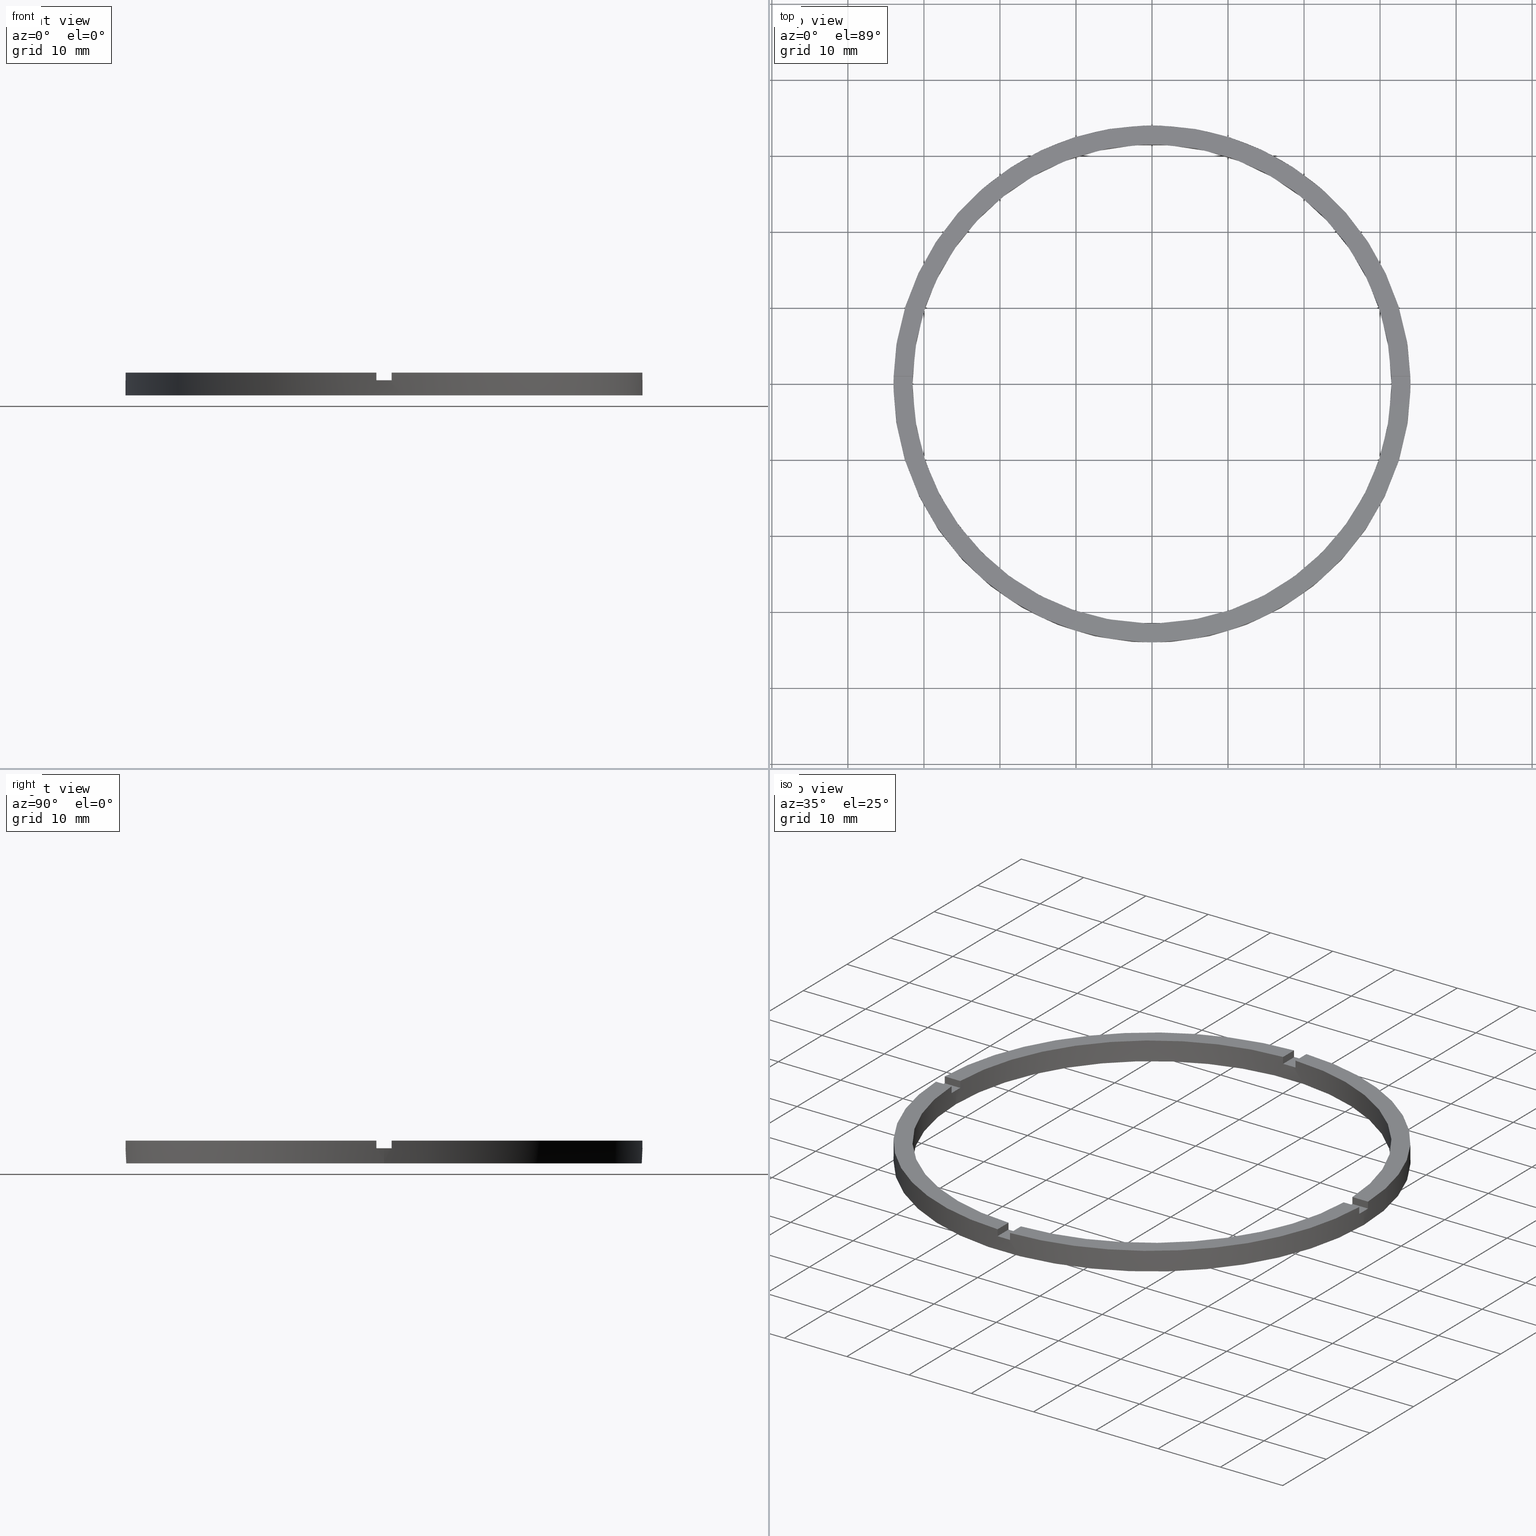
[diagram: canonical four-view strip — front | top / right | iso, engineering-drawing reading convention]
A machine part, canonical four-view strip (front | top / right | iso — engineering-drawing reading convention). The complete STEP part file that produces these views, byte-faithful:
ISO-10303-21;
HEADER;
FILE_DESCRIPTION (( 'STEP AP203' ),
    '1' );
FILE_NAME ('514140.step',
    '2024-12-26T02:41:22',
    ( 'MSI' ),
    ( '' ),
    'SwSTEP 2.0',
    'SolidWorks 2020',
    '' );
FILE_SCHEMA (( 'CONFIG_CONTROL_DESIGN' ));
ENDSEC;

DATA;
#1 = EDGE_CURVE ( 'NONE', #356, #664, #633, .T. ) ;
#2 = AXIS2_PLACEMENT_3D ( 'NONE', #717, #768, #128 ) ;
#3 = CARTESIAN_POINT ( 'NONE',  ( 33.98529093593285921, 0.9999999999998419042, 3.000000000000000000 ) ) ;
#4 = EDGE_LOOP ( 'NONE', ( #408, #92, #340, #154 ) ) ;
#5 = DIRECTION ( 'NONE',  ( 0.000000000000000000, 0.000000000000000000, 1.000000000000000000 ) ) ;
#6 = EDGE_LOOP ( 'NONE', ( #116, #222, #625, #423 ) ) ;
#7 = APPROVAL_ROLE ( '' ) ;
#8 = AXIS2_PLACEMENT_3D ( 'NONE', #546, #290, #142 ) ;
#9 = DIRECTION ( 'NONE',  ( 1.951563910473907735E-16, -1.000000000000000000, 0.000000000000000000 ) ) ;
#10 = ORIENTED_EDGE ( 'NONE', *, *, #11, .T. ) ;
#11 = EDGE_CURVE ( 'NONE', #246, #400, #643, .T. ) ;
#12 = AXIS2_PLACEMENT_3D ( 'NONE', #532, #288, #674 ) ;
#13 = APPROVAL_DATE_TIME ( #273, #708 ) ;
#14 = DIRECTION ( 'NONE',  ( -0.000000000000000000, -0.000000000000000000, -1.000000000000000000 ) ) ;
#15 = EDGE_LOOP ( 'NONE', ( #636, #626, #94, #138 ) ) ;
#16 = VERTEX_POINT ( 'NONE', #682 ) ;
#17 = PERSON_AND_ORGANIZATION ( #520, #336 ) ;
#18 = ORIENTED_EDGE ( 'NONE', *, *, #647, .F. ) ;
#19 = ORIENTED_EDGE ( 'NONE', *, *, #326, .T. ) ;
#20 = EDGE_CURVE ( 'NONE', #596, #73, #347, .T. ) ;
#21 = DIRECTION ( 'NONE',  ( 1.000000000000000000, 0.000000000000000000, 0.000000000000000000 ) ) ;
#22 = ORIENTED_EDGE ( 'NONE', *, *, #574, .F. ) ;
#23 = CC_DESIGN_PERSON_AND_ORGANIZATION_ASSIGNMENT ( #614, #263, ( #109 ) ) ;
#24 =( NAMED_UNIT ( * ) PLANE_ANGLE_UNIT ( ) SI_UNIT ( $, .RADIAN. ) );
#25 = CARTESIAN_POINT ( 'NONE',  ( -24.00000000000018829, 0.9999999999999754641, 2.000000000000000000 ) ) ;
#26 = ORIENTED_EDGE ( 'NONE', *, *, #261, .T. ) ;
#27 = EDGE_CURVE ( 'NONE', #646, #394, #618, .T. ) ;
#28 = CALENDAR_DATE ( 2024, 26, 12 ) ;
#29 = CARTESIAN_POINT ( 'NONE',  ( 0.000000000000000000, 0.000000000000000000, 3.000000000000000000 ) ) ;
#30 = CARTESIAN_POINT ( 'NONE',  ( 0.000000000000000000, 0.000000000000000000, 3.000000000000000000 ) ) ;
#31 = CARTESIAN_POINT ( 'NONE',  ( 0.000000000000000000, 0.000000000000000000, 3.000000000000000000 ) ) ;
#32 = DIRECTION ( 'NONE',  ( 1.000000000000000000, 0.000000000000000000, 0.000000000000000000 ) ) ;
#33 = COORDINATED_UNIVERSAL_TIME_OFFSET ( 8, 0, .AHEAD. ) ;
#34 = AXIS2_PLACEMENT_3D ( 'NONE', #526, #517, #278 ) ;
#35 = APPROVAL_PERSON_ORGANIZATION ( #611, #648, #754 ) ;
#36 = DIRECTION ( 'NONE',  ( 1.000000000000000000, 0.000000000000000000, 0.000000000000000000 ) ) ;
#37 = CALENDAR_DATE ( 2024, 26, 12 ) ;
#38 = EDGE_CURVE ( 'NONE', #376, #344, #93, .T. ) ;
#39 = AXIS2_PLACEMENT_3D ( 'NONE', #723, #241, #190 ) ;
#40 = VECTOR ( 'NONE', #556, 1000.000000000000000 ) ;
#41 = VECTOR ( 'NONE', #393, 1000.000000000000000 ) ;
#42 = VECTOR ( 'NONE', #691, 1000.000000000000000 ) ;
#43 = PLANE ( 'NONE',  #445 ) ;
#44 = CARTESIAN_POINT ( 'NONE',  ( -31.48412298286233124, -1.000000000000025757, 3.000000000000000000 ) ) ;
#45 = VECTOR ( 'NONE', #730, 1000.000000000000000 ) ;
#46 = CIRCLE ( 'NONE', #477, 34.00000000000000000 ) ;
#47 = LINE ( 'NONE', #589, #597 ) ;
#48 = PLANE ( 'NONE',  #162 ) ;
#49 = CIRCLE ( 'NONE', #39, 31.50000000000000000 ) ;
#50 = CARTESIAN_POINT ( 'NONE',  ( -1.000000000000160760, -33.98529093593285211, 2.000000000000000000 ) ) ;
#51 = CARTESIAN_POINT ( 'NONE',  ( 0.9999999999998380185, -24.00000000000018119, 3.000000000000000000 ) ) ;
#52 = LINE ( 'NONE', #769, #71 ) ;
#53 = CIRCLE ( 'NONE', #699, 31.50000000000000000 ) ;
#54 = FACE_OUTER_BOUND ( 'NONE', #115, .T. ) ;
#55 = CIRCLE ( 'NONE', #212, 31.50000000000000000 ) ;
#56 = CARTESIAN_POINT ( 'NONE',  ( 0.000000000000000000, 0.000000000000000000, 3.000000000000000000 ) ) ;
#57 = PLANE ( 'NONE',  #337 ) ;
#58 = ADVANCED_FACE ( 'NONE', ( #615 ), #627, .T. ) ;
#59 = FACE_OUTER_BOUND ( 'NONE', #15, .T. ) ;
#60 = VECTOR ( 'NONE', #489, 1000.000000000000000 ) ;
#61 = CARTESIAN_POINT ( 'NONE',  ( -24.00000000000018829, -1.000000000000024425, 3.000000000000000000 ) ) ;
#62 = VECTOR ( 'NONE', #506, 1000.000000000000000 ) ;
#63 = DIRECTION ( 'NONE',  ( 0.000000000000000000, -0.000000000000000000, 1.000000000000000000 ) ) ;
#64 = VECTOR ( 'NONE', #737, 1000.000000000000000 ) ;
#65 = ORIENTED_EDGE ( 'NONE', *, *, #219, .F. ) ;
#66 = VECTOR ( 'NONE', #342, 1000.000000000000000 ) ;
#67 = ORIENTED_EDGE ( 'NONE', *, *, #456, .T. ) ;
#68 = LINE ( 'NONE', #390, #581 ) ;
#69 = FACE_OUTER_BOUND ( 'NONE', #378, .T. ) ;
#70 = EDGE_CURVE ( 'NONE', #117, #327, #86, .T. ) ;
#71 = VECTOR ( 'NONE', #175, 1000.000000000000000 ) ;
#72 = LINE ( 'NONE', #765, #330 ) ;
#73 = VERTEX_POINT ( 'NONE', #771 ) ;
#74 = AXIS2_PLACEMENT_3D ( 'NONE', #425, #473, #533 ) ;
#75 = ORIENTED_EDGE ( 'NONE', *, *, #70, .F. ) ;
#76 = APPROVAL_DATE_TIME ( #624, #258 ) ;
#77 = DIRECTION ( 'NONE',  ( -1.000000000000000000, -6.505213034913025371E-17, -0.000000000000000000 ) ) ;
#78 = ORIENTED_EDGE ( 'NONE', *, *, #126, .F. ) ;
#79 = CALENDAR_DATE ( 2024, 26, 12 ) ;
#80 = ORIENTED_EDGE ( 'NONE', *, *, #38, .T. ) ;
#81 = DATE_AND_TIME ( #79, #608 ) ;
#82 = EDGE_LOOP ( 'NONE', ( #513, #700, #277, #230 ) ) ;
#83 = APPROVAL_PERSON_ORGANIZATION ( #606, #258, #153 ) ;
#84 = AXIS2_PLACEMENT_3D ( 'NONE', #399, #401, #560 ) ;
#85 = CARTESIAN_POINT ( 'NONE',  ( -31.48412298286233124, -1.000000000000025757, 2.000000000000000000 ) ) ;
#86 = LINE ( 'NONE', #157, #635 ) ;
#87 = ORIENTED_EDGE ( 'NONE', *, *, #634, .T. ) ;
#88 = AXIS2_PLACEMENT_3D ( 'NONE', #304, #494, #578 ) ;
#89 = ORIENTED_EDGE ( 'NONE', *, *, #160, .F. ) ;
#90 = ORIENTED_EDGE ( 'NONE', *, *, #219, .T. ) ;
#91 = DIRECTION ( 'NONE',  ( -1.000000000000000000, 0.000000000000000000, 0.000000000000000000 ) ) ;
#92 = ORIENTED_EDGE ( 'NONE', *, *, #729, .T. ) ;
#93 = LINE ( 'NONE', #113, #95 ) ;
#94 = ORIENTED_EDGE ( 'NONE', *, *, #501, .T. ) ;
#95 = VECTOR ( 'NONE', #206, 1000.000000000000000 ) ;
#96 = VERTEX_POINT ( 'NONE', #724 ) ;
#97 = ORIENTED_EDGE ( 'NONE', *, *, #734, .T. ) ;
#98 = EDGE_LOOP ( 'NONE', ( #778, #504, #329, #770 ) ) ;
#99 = APPLICATION_CONTEXT ( 'configuration controlled 3d designs of mechanical parts and assemblies' ) ;
#100 = VERTEX_POINT ( 'NONE', #672 ) ;
#101 = VERTEX_POINT ( 'NONE', #213 ) ;
#102 = DIRECTION ( 'NONE',  ( 0.000000000000000000, 0.000000000000000000, 1.000000000000000000 ) ) ;
#103 = EDGE_CURVE ( 'NONE', #642, #16, #365, .T. ) ;
#104 = ORIENTED_EDGE ( 'NONE', *, *, #422, .T. ) ;
#105 = ORIENTED_EDGE ( 'NONE', *, *, #658, .F. ) ;
#106 = ORIENTED_EDGE ( 'NONE', *, *, #70, .T. ) ;
#107 = EDGE_LOOP ( 'NONE', ( #641, #370, #514, #690, #223, #67 ) ) ;
#108 = ORIENTED_EDGE ( 'NONE', *, *, #585, .T. ) ;
#109 = PRODUCT_DEFINITION ( 'δ֪', '', #450, #460 ) ;
#110 = DIRECTION ( 'NONE',  ( 0.000000000000000000, 0.000000000000000000, 1.000000000000000000 ) ) ;
#111 = EDGE_LOOP ( 'NONE', ( #414, #410, #87, #522, #19, #530, #372, #493, #104, #391, #362, #97 ) ) ;
#112 = EDGE_LOOP ( 'NONE', ( #543, #692, #745, #753 ) ) ;
#113 = CARTESIAN_POINT ( 'NONE',  ( 31.50000000000000000, 3.857637417314162689E-15, 3.000000000000000000 ) ) ;
#114 = EDGE_LOOP ( 'NONE', ( #249, #251, #623, #167 ) ) ;
#115 = EDGE_LOOP ( 'NONE', ( #677, #358 ) ) ;
#116 = ORIENTED_EDGE ( 'NONE', *, *, #456, .F. ) ;
#117 = VERTEX_POINT ( 'NONE', #44 ) ;
#118 = ADVANCED_FACE ( 'NONE', ( #637 ), #209, .T. ) ;
#119 = EDGE_LOOP ( 'NONE', ( #416, #427, #490, #696 ) ) ;
#120 = VERTEX_POINT ( 'NONE', #259 ) ;
#121 = ORIENTED_EDGE ( 'NONE', *, *, #38, .F. ) ;
#122 = CARTESIAN_POINT ( 'NONE',  ( 0.000000000000000000, 0.000000000000000000, 2.000000000000000000 ) ) ;
#123 = CARTESIAN_POINT ( 'NONE',  ( 0.000000000000000000, 0.000000000000000000, 2.000000000000000000 ) ) ;
#124 = CARTESIAN_POINT ( 'NONE',  ( 0.9999999999999751310, 24.00000000000000000, 2.000000000000000000 ) ) ;
#125 = DIRECTION ( 'NONE',  ( 1.000000000000000000, 0.000000000000000000, -0.000000000000000000 ) ) ;
#126 = EDGE_CURVE ( 'NONE', #629, #338, #743, .T. ) ;
#127 = AXIS2_PLACEMENT_3D ( 'NONE', #122, #210, #588 ) ;
#128 = DIRECTION ( 'NONE',  ( 1.000000000000000000, 0.000000000000000000, -0.000000000000000000 ) ) ;
#129 = PLANE ( 'NONE',  #407 ) ;
#130 = EDGE_CURVE ( 'NONE', #344, #271, #486, .T. ) ;
#131 = ORIENTED_EDGE ( 'NONE', *, *, #678, .F. ) ;
#132 = CARTESIAN_POINT ( 'NONE',  ( 0.9999999999998380185, -24.00000000000018119, 2.000000000000000000 ) ) ;
#133 = DIRECTION ( 'NONE',  ( -0.000000000000000000, 0.000000000000000000, 1.000000000000000000 ) ) ;
#134 = DIRECTION ( 'NONE',  ( 0.000000000000000000, 0.000000000000000000, 1.000000000000000000 ) ) ;
#135 = ADVANCED_FACE ( 'NONE', ( #495 ), #169, .T. ) ;
#136 = ORIENTED_EDGE ( 'NONE', *, *, #467, .F. ) ;
#137 = AXIS2_PLACEMENT_3D ( 'NONE', #718, #436, #32 ) ;
#138 = ORIENTED_EDGE ( 'NONE', *, *, #689, .F. ) ;
#139 = DIRECTION ( 'NONE',  ( -1.000000000000000000, -1.951563910473907735E-16, 0.000000000000000000 ) ) ;
#140 = DIRECTION ( 'NONE',  ( 1.000000000000000000, 0.000000000000000000, 0.000000000000000000 ) ) ;
#141 = EDGE_CURVE ( 'NONE', #596, #120, #738, .T. ) ;
#142 = DIRECTION ( 'NONE',  ( 1.000000000000000000, 6.505213034913025371E-17, 0.000000000000000000 ) ) ;
#143 = CC_DESIGN_PERSON_AND_ORGANIZATION_ASSIGNMENT ( #558, #404, ( #450 ) ) ;
#144 = ORIENTED_EDGE ( 'NONE', *, *, #767, .T. ) ;
#145 = ADVANCED_FACE ( 'NONE', ( #505 ), #468, .T. ) ;
#146 = DIRECTION ( 'NONE',  ( 1.000000000000000000, 1.951563910473907735E-16, -0.000000000000000000 ) ) ;
#147 = DIRECTION ( 'NONE',  ( -1.000000000000000000, -1.301042606982605074E-16, 0.000000000000000000 ) ) ;
#148 = DIRECTION ( 'NONE',  ( 1.000000000000000000, 1.951563910473907735E-16, 0.000000000000000000 ) ) ;
#149 = EDGE_CURVE ( 'NONE', #371, #415, #748, .T. ) ;
#150 = ORIENTED_EDGE ( 'NONE', *, *, #491, .T. ) ;
#151 = DIRECTION ( 'NONE',  ( 0.000000000000000000, 0.000000000000000000, 1.000000000000000000 ) ) ;
#152 = DIRECTION ( 'NONE',  ( 1.000000000000000000, 0.000000000000000000, -0.000000000000000000 ) ) ;
#153 = APPROVAL_ROLE ( '' ) ;
#154 = ORIENTED_EDGE ( 'NONE', *, *, #668, .F. ) ;
#155 = VERTEX_POINT ( 'NONE', #412 ) ;
#156 = ORIENTED_EDGE ( 'NONE', *, *, #501, .F. ) ;
#157 = CARTESIAN_POINT ( 'NONE',  ( -31.48412298286233124, -1.000000000000025757, 3.000000000000000000 ) ) ;
#158 = PLANE ( 'NONE',  #484 ) ;
#159 = AXIS2_PLACEMENT_3D ( 'NONE', #323, #379, #270 ) ;
#160 = EDGE_CURVE ( 'NONE', #415, #382, #478, .T. ) ;
#161 = ORIENTED_EDGE ( 'NONE', *, *, #256, .T. ) ;
#162 = AXIS2_PLACEMENT_3D ( 'NONE', #132, #374, #435 ) ;
#163 = PERSON_AND_ORGANIZATION_ROLE ( 'classification_officer' ) ;
#164 = CARTESIAN_POINT ( 'NONE',  ( 0.000000000000000000, 0.000000000000000000, 2.000000000000000000 ) ) ;
#165 = VERTEX_POINT ( 'NONE', #174 ) ;
#166 = DIRECTION ( 'NONE',  ( -0.000000000000000000, -0.000000000000000000, -1.000000000000000000 ) ) ;
#167 = ORIENTED_EDGE ( 'NONE', *, *, #261, .F. ) ;
#168 = DIRECTION ( 'NONE',  ( 1.000000000000000000, 1.951563910473907735E-16, -0.000000000000000000 ) ) ;
#169 = PLANE ( 'NONE',  #280 ) ;
#170 = ORIENTED_EDGE ( 'NONE', *, *, #1, .T. ) ;
#171 = AXIS2_PLACEMENT_3D ( 'NONE', #123, #419, #36 ) ;
#172 = DIRECTION ( 'NONE',  ( -1.000000000000000000, 0.000000000000000000, 0.000000000000000000 ) ) ;
#173 = PLANE ( 'NONE',  #185 ) ;
#174 = CARTESIAN_POINT ( 'NONE',  ( 31.48412298286233479, 0.9999999999998416822, 2.000000000000000000 ) ) ;
#175 = DIRECTION ( 'NONE',  ( -0.000000000000000000, -1.000000000000000000, -0.000000000000000000 ) ) ;
#176 = EDGE_CURVE ( 'NONE', #356, #649, #497, .T. ) ;
#177 = ADVANCED_FACE ( 'NONE', ( #479 ), #173, .T. ) ;
#178 = CARTESIAN_POINT ( 'NONE',  ( 0.000000000000000000, 0.000000000000000000, 0.000000000000000000 ) ) ;
#179 = CARTESIAN_POINT ( 'NONE',  ( 0.000000000000000000, 0.000000000000000000, 2.000000000000000000 ) ) ;
#180 = AXIS2_PLACEMENT_3D ( 'NONE', #348, #466, #413 ) ;
#181 = DIRECTION ( 'NONE',  ( -1.951563910473907735E-16, 1.000000000000000000, 0.000000000000000000 ) ) ;
#182 = CARTESIAN_POINT ( 'NONE',  ( 0.000000000000000000, 0.000000000000000000, 0.000000000000000000 ) ) ;
#183 = CIRCLE ( 'NONE', #516, 31.50000000000000000 ) ;
#184 = VECTOR ( 'NONE', #757, 1000.000000000000000 ) ;
#185 = AXIS2_PLACEMENT_3D ( 'NONE', #773, #680, #357 ) ;
#186 = CIRCLE ( 'NONE', #88, 34.00000000000000000 ) ;
#187 = PLANE ( 'NONE',  #396 ) ;
#188 = DIRECTION ( 'NONE',  ( 0.000000000000000000, 0.000000000000000000, 1.000000000000000000 ) ) ;
#189 = CARTESIAN_POINT ( 'NONE',  ( 33.98529093593285211, -1.000000000000158096, 3.000000000000000000 ) ) ;
#190 = DIRECTION ( 'NONE',  ( 1.000000000000000000, 0.000000000000000000, 0.000000000000000000 ) ) ;
#191 = LINE ( 'NONE', #707, #184 ) ;
#192 = EDGE_CURVE ( 'NONE', #101, #382, #756, .T. ) ;
#193 = VECTOR ( 'NONE', #310, 1000.000000000000000 ) ;
#194 = CIRCLE ( 'NONE', #448, 34.00000000000000000 ) ;
#195 = APPLICATION_PROTOCOL_DEFINITION ( 'international standard', 'config_control_design', 1994, #750 ) ;
#196 = CARTESIAN_POINT ( 'NONE',  ( 33.98529093593285211, -1.000000000000158096, 3.000000000000000000 ) ) ;
#197 = MANIFOLD_SOLID_BREP ( '�г�-����1', #613 ) ;
#198 = CARTESIAN_POINT ( 'NONE',  ( 0.9999999999999751310, 31.48412298286233124, 3.000000000000000000 ) ) ;
#199 = AXIS2_PLACEMENT_3D ( 'NONE', #366, #409, #125 ) ;
#200 = CARTESIAN_POINT ( 'NONE',  ( 0.9999999999998380185, -24.00000000000018119, 2.000000000000000000 ) ) ;
#201 = DIRECTION ( 'NONE',  ( 1.000000000000000000, 0.000000000000000000, 0.000000000000000000 ) ) ;
#202 = EDGE_CURVE ( 'NONE', #433, #276, #233, .T. ) ;
#203 = PRODUCT ( '514140', '514140', '', ( #461 ) ) ;
#204 = DIRECTION ( 'NONE',  ( 1.000000000000000000, 0.000000000000000000, 0.000000000000000000 ) ) ;
#205 = CARTESIAN_POINT ( 'NONE',  ( 0.000000000000000000, 0.000000000000000000, 2.000000000000000000 ) ) ;
#206 = DIRECTION ( 'NONE',  ( -0.000000000000000000, -0.000000000000000000, -1.000000000000000000 ) ) ;
#207 = LINE ( 'NONE', #782, #216 ) ;
#208 = EDGE_CURVE ( 'NONE', #155, #354, #487, .T. ) ;
#209 = CYLINDRICAL_SURFACE ( 'NONE', #384, 34.00000000000000000 ) ;
#210 = DIRECTION ( 'NONE',  ( 0.000000000000000000, -0.000000000000000000, 1.000000000000000000 ) ) ;
#211 = CARTESIAN_POINT ( 'NONE',  ( 0.9999999999998393507, -33.98529093593285921, 3.000000000000000000 ) ) ;
#212 = AXIS2_PLACEMENT_3D ( 'NONE', #240, #63, #140 ) ;
#213 = CARTESIAN_POINT ( 'NONE',  ( -1.000000000000024869, 33.98529093593285211, 3.000000000000000000 ) ) ;
#214 = ADVANCED_FACE ( 'NONE', ( #502 ), #346, .T. ) ;
#215 = CARTESIAN_POINT ( 'NONE',  ( -33.98529093593285921, 0.9999999999999735767, 2.000000000000000000 ) ) ;
#216 = VECTOR ( 'NONE', #239, 1000.000000000000000 ) ;
#217 = PLANE ( 'NONE',  #171 ) ;
#218 = LINE ( 'NONE', #387, #220 ) ;
#219 = EDGE_CURVE ( 'NONE', #338, #96, #758, .T. ) ;
#220 = VECTOR ( 'NONE', #776, 1000.000000000000000 ) ;
#221 = CARTESIAN_POINT ( 'NONE',  ( 31.48412298286233479, 0.9999999999998416822, 3.000000000000000000 ) ) ;
#222 = ORIENTED_EDGE ( 'NONE', *, *, #553, .T. ) ;
#223 = ORIENTED_EDGE ( 'NONE', *, *, #103, .F. ) ;
#224 = VECTOR ( 'NONE', #666, 1000.000000000000000 ) ;
#225 = CARTESIAN_POINT ( 'NONE',  ( 0.000000000000000000, 0.000000000000000000, 3.000000000000000000 ) ) ;
#226 = DIRECTION ( 'NONE',  ( 0.000000000000000000, 0.000000000000000000, 1.000000000000000000 ) ) ;
#227 = DIRECTION ( 'NONE',  ( 0.000000000000000000, -0.000000000000000000, 1.000000000000000000 ) ) ;
#228 = VECTOR ( 'NONE', #594, 1000.000000000000000 ) ;
#229 = EDGE_CURVE ( 'NONE', #388, #155, #740, .T. ) ;
#230 = ORIENTED_EDGE ( 'NONE', *, *, #571, .F. ) ;
#231 = AXIS2_PLACEMENT_3D ( 'NONE', #449, #703, #567 ) ;
#232 = CARTESIAN_POINT ( 'NONE',  ( 0.000000000000000000, 0.000000000000000000, 2.000000000000000000 ) ) ;
#233 = LINE ( 'NONE', #267, #224 ) ;
#234 = CARTESIAN_POINT ( 'NONE',  ( 0.000000000000000000, 0.000000000000000000, 2.000000000000000000 ) ) ;
#235 = DIRECTION ( 'NONE',  ( -0.000000000000000000, -0.000000000000000000, -1.000000000000000000 ) ) ;
#236 = ADVANCED_FACE ( 'NONE', ( #744 ), #48, .F. ) ;
#237 = ORIENTED_EDGE ( 'NONE', *, *, #686, .F. ) ;
#238 = FACE_OUTER_BOUND ( 'NONE', #6, .T. ) ;
#239 = DIRECTION ( 'NONE',  ( 0.000000000000000000, 0.000000000000000000, 1.000000000000000000 ) ) ;
#240 = CARTESIAN_POINT ( 'NONE',  ( 0.000000000000000000, 0.000000000000000000, 2.000000000000000000 ) ) ;
#241 = DIRECTION ( 'NONE',  ( 0.000000000000000000, 0.000000000000000000, 1.000000000000000000 ) ) ;
#242 = LINE ( 'NONE', #198, #244 ) ;
#243 = ADVANCED_FACE ( 'NONE', ( #238 ), #187, .F. ) ;
#244 = VECTOR ( 'NONE', #752, 1000.000000000000000 ) ;
#245 =( LENGTH_UNIT ( ) NAMED_UNIT ( * ) SI_UNIT ( .MILLI., .METRE. ) );
#246 = VERTEX_POINT ( 'NONE', #731 ) ;
#247 = CARTESIAN_POINT ( 'NONE',  ( -1.000000000000160760, -33.98529093593285211, 3.000000000000000000 ) ) ;
#248 = EDGE_CURVE ( 'NONE', #646, #155, #207, .T. ) ;
#249 = ORIENTED_EDGE ( 'NONE', *, *, #149, .F. ) ;
#250 = VERTEX_POINT ( 'NONE', #297 ) ;
#251 = ORIENTED_EDGE ( 'NONE', *, *, #265, .T. ) ;
#252 = PLANE ( 'NONE',  #8 ) ;
#253 = EDGE_LOOP ( 'NONE', ( #121, #527, #352, #90, #515, #349, #431, #766, #369, #600, #764, #698 ) ) ;
#254 = SECURITY_CLASSIFICATION_LEVEL ( 'unclassified' ) ;
#255 = ORIENTED_EDGE ( 'NONE', *, *, #602, .F. ) ;
#256 = EDGE_CURVE ( 'NONE', #246, #117, #483, .T. ) ;
#257 = ORIENTED_EDGE ( 'NONE', *, *, #733, .F. ) ;
#258 = APPROVAL ( #322, 'δָ��' ) ;
#259 = CARTESIAN_POINT ( 'NONE',  ( -34.00000000000000000, 0.000000000000000000, 0.000000000000000000 ) ) ;
#260 = DIRECTION ( 'NONE',  ( 1.000000000000000000, 0.000000000000000000, -0.000000000000000000 ) ) ;
#261 = EDGE_CURVE ( 'NONE', #415, #262, #218, .T. ) ;
#262 = VERTEX_POINT ( 'NONE', #488 ) ;
#263 = PERSON_AND_ORGANIZATION_ROLE ( 'creator' ) ;
#264 = DIRECTION ( 'NONE',  ( -1.000000000000000000, 0.000000000000000000, 0.000000000000000000 ) ) ;
#265 = EDGE_CURVE ( 'NONE', #371, #96, #242, .T. ) ;
#266 = EDGE_LOOP ( 'NONE', ( #161, #106, #105, #693 ) ) ;
#267 = CARTESIAN_POINT ( 'NONE',  ( -33.98529093593285921, 0.9999999999999735767, 3.000000000000000000 ) ) ;
#268 = CARTESIAN_POINT ( 'NONE',  ( 34.00000000000000000, 4.163799117101000559E-15, 0.000000000000000000 ) ) ;
#269 = ORIENTED_EDGE ( 'NONE', *, *, #256, .F. ) ;
#270 = DIRECTION ( 'NONE',  ( 1.000000000000000000, 0.000000000000000000, 0.000000000000000000 ) ) ;
#271 = VERTEX_POINT ( 'NONE', #446 ) ;
#272 = CARTESIAN_POINT ( 'NONE',  ( -1.000000000000024869, 31.48412298286233124, 3.000000000000000000 ) ) ;
#273 = DATE_AND_TIME ( #37, #548 ) ;
#274 = DIRECTION ( 'NONE',  ( 0.000000000000000000, 1.000000000000000000, 0.000000000000000000 ) ) ;
#275 = PLANE ( 'NONE',  #199 ) ;
#276 = VERTEX_POINT ( 'NONE', #706 ) ;
#277 = ORIENTED_EDGE ( 'NONE', *, *, #368, .F. ) ;
#278 = DIRECTION ( 'NONE',  ( 1.000000000000000000, 0.000000000000000000, 0.000000000000000000 ) ) ;
#279 = ADVANCED_FACE ( 'NONE', ( #763 ), #559, .F. ) ;
#280 = AXIS2_PLACEMENT_3D ( 'NONE', #359, #227, #285 ) ;
#281 = ORIENTED_EDGE ( 'NONE', *, *, #729, .F. ) ;
#282 = EDGE_CURVE ( 'NONE', #250, #649, #507, .T. ) ;
#283 = CARTESIAN_POINT ( 'NONE',  ( 23.99999999999999289, -1.000000000000158762, 3.000000000000000000 ) ) ;
#284 = DIRECTION ( 'NONE',  ( 1.000000000000000000, 0.000000000000000000, -0.000000000000000000 ) ) ;
#285 = DIRECTION ( 'NONE',  ( 1.000000000000000000, 0.000000000000000000, -0.000000000000000000 ) ) ;
#286 = APPROVAL_PERSON_ORGANIZATION ( #17, #708, #7 ) ;
#287 = DATE_AND_TIME ( #561, #541 ) ;
#288 = DIRECTION ( 'NONE',  ( 0.000000000000000000, 0.000000000000000000, 1.000000000000000000 ) ) ;
#289 = CARTESIAN_POINT ( 'NONE',  ( -1.000000000000024869, 31.48412298286233124, 3.000000000000000000 ) ) ;
#290 = DIRECTION ( 'NONE',  ( 6.505213034913025371E-17, -1.000000000000000000, 0.000000000000000000 ) ) ;
#291 = SHAPE_DEFINITION_REPRESENTATION ( #563, #475 ) ;
#292 = DIRECTION ( 'NONE',  ( 1.301042606982605074E-16, -1.000000000000000000, 0.000000000000000000 ) ) ;
#293 = EDGE_CURVE ( 'NONE', #376, #165, #183, .T. ) ;
#294 = AXIS2_PLACEMENT_3D ( 'NONE', #225, #480, #472 ) ;
#295 = CC_DESIGN_APPROVAL ( #258, ( #109 ) ) ;
#296 = COORDINATED_UNIVERSAL_TIME_OFFSET ( 8, 0, .AHEAD. ) ;
#297 = CARTESIAN_POINT ( 'NONE',  ( 0.9999999999998393507, -33.98529093593285921, 2.000000000000000000 ) ) ;
#298 = CARTESIAN_POINT ( 'NONE',  ( -31.48412298286233124, 0.9999999999999742428, 3.000000000000000000 ) ) ;
#299 = PERSON_AND_ORGANIZATION ( #520, #336 ) ;
#300 = COORDINATED_UNIVERSAL_TIME_OFFSET ( 8, 0, .AHEAD. ) ;
#301 = CARTESIAN_POINT ( 'NONE',  ( 0.9999999999999751310, 24.00000000000000000, 3.000000000000000000 ) ) ;
#302 = LINE ( 'NONE', #595, #309 ) ;
#303 = DIRECTION ( 'NONE',  ( 1.000000000000000000, 0.000000000000000000, 0.000000000000000000 ) ) ;
#304 = CARTESIAN_POINT ( 'NONE',  ( 0.000000000000000000, 0.000000000000000000, 3.000000000000000000 ) ) ;
#305 = DIRECTION ( 'NONE',  ( -0.000000000000000000, -1.000000000000000000, -0.000000000000000000 ) ) ;
#306 = VECTOR ( 'NONE', #539, 1000.000000000000000 ) ;
#307 = CIRCLE ( 'NONE', #84, 34.00000000000000000 ) ;
#308 = VECTOR ( 'NONE', #523, 1000.000000000000000 ) ;
#309 = VECTOR ( 'NONE', #580, 1000.000000000000000 ) ;
#310 = DIRECTION ( 'NONE',  ( -1.301042606982605074E-16, 1.000000000000000000, -0.000000000000000000 ) ) ;
#311 = LINE ( 'NONE', #453, #569 ) ;
#312 = LINE ( 'NONE', #437, #583 ) ;
#313 = CYLINDRICAL_SURFACE ( 'NONE', #74, 31.50000000000000000 ) ;
#314 = LINE ( 'NONE', #301, #42 ) ;
#315 = CIRCLE ( 'NONE', #536, 34.00000000000000000 ) ;
#316 = CIRCLE ( 'NONE', #465, 34.00000000000000000 ) ;
#317 = APPROVAL_STATUS ( 'not_yet_approved' ) ;
#318 = CARTESIAN_POINT ( 'NONE',  ( 31.48412298286233479, 0.9999999999998416822, 3.000000000000000000 ) ) ;
#319 = LINE ( 'NONE', #196, #41 ) ;
#320 = AXIS2_PLACEMENT_3D ( 'NONE', #469, #779, #91 ) ;
#321 = LINE ( 'NONE', #51, #40 ) ;
#322 = APPROVAL_STATUS ( 'not_yet_approved' ) ;
#323 = CARTESIAN_POINT ( 'NONE',  ( 0.000000000000000000, 0.000000000000000000, 3.000000000000000000 ) ) ;
#324 = CIRCLE ( 'NONE', #676, 34.00000000000000000 ) ;
#325 = CARTESIAN_POINT ( 'NONE',  ( 31.50000000000000000, 3.857637417314162689E-15, 2.000000000000000000 ) ) ;
#326 = EDGE_CURVE ( 'NONE', #652, #250, #455, .T. ) ;
#327 = VERTEX_POINT ( 'NONE', #85 ) ;
#328 = LINE ( 'NONE', #681, #60 ) ;
#329 = ORIENTED_EDGE ( 'NONE', *, *, #208, .T. ) ;
#330 = VECTOR ( 'NONE', #168, 1000.000000000000000 ) ;
#331 = CIRCLE ( 'NONE', #411, 31.50000000000000000 ) ;
#332 = DIRECTION ( 'NONE',  ( -1.000000000000000000, -6.505213034913025371E-17, -0.000000000000000000 ) ) ;
#333 = LINE ( 'NONE', #746, #62 ) ;
#334 = DIRECTION ( 'NONE',  ( -0.000000000000000000, -0.000000000000000000, -1.000000000000000000 ) ) ;
#335 = FACE_OUTER_BOUND ( 'NONE', #518, .T. ) ;
#336 = ORGANIZATION ( 'δָ��', 'δָ��', '' ) ;
#337 = AXIS2_PLACEMENT_3D ( 'NONE', #428, #5, #152 ) ;
#338 = VERTEX_POINT ( 'NONE', #318 ) ;
#339 = DIRECTION ( 'NONE',  ( 1.000000000000000000, 0.000000000000000000, 0.000000000000000000 ) ) ;
#340 = ORIENTED_EDGE ( 'NONE', *, *, #598, .F. ) ;
#341 = PERSON_AND_ORGANIZATION ( #520, #336 ) ;
#342 = DIRECTION ( 'NONE',  ( -0.000000000000000000, -0.000000000000000000, -1.000000000000000000 ) ) ;
#343 = ORIENTED_EDGE ( 'NONE', *, *, #508, .F. ) ;
#344 = VERTEX_POINT ( 'NONE', #704 ) ;
#345 = CALENDAR_DATE ( 2024, 26, 12 ) ;
#346 = PLANE ( 'NONE',  #2 ) ;
#347 = CIRCLE ( 'NONE', #702, 34.00000000000000000 ) ;
#348 = CARTESIAN_POINT ( 'NONE',  ( 23.99999999999999289, 0.9999999999998412381, 2.000000000000000000 ) ) ;
#349 = ORIENTED_EDGE ( 'NONE', *, *, #762, .T. ) ;
#350 = ORIENTED_EDGE ( 'NONE', *, *, #552, .T. ) ;
#351 = LOCAL_TIME ( 10, 41, 22.00000000000000000, #610 ) ;
#352 = ORIENTED_EDGE ( 'NONE', *, *, #720, .F. ) ;
#353 = EDGE_CURVE ( 'NONE', #394, #385, #194, .T. ) ;
#354 = VERTEX_POINT ( 'NONE', #189 ) ;
#355 = VECTOR ( 'NONE', #438, 1000.000000000000000 ) ;
#356 = VERTEX_POINT ( 'NONE', #500 ) ;
#357 = DIRECTION ( 'NONE',  ( 1.000000000000000000, 0.000000000000000000, -0.000000000000000000 ) ) ;
#358 = ORIENTED_EDGE ( 'NONE', *, *, #767, .F. ) ;
#359 = CARTESIAN_POINT ( 'NONE',  ( 0.000000000000000000, 0.000000000000000000, 2.000000000000000000 ) ) ;
#360 = CC_DESIGN_PERSON_AND_ORGANIZATION_ASSIGNMENT ( #341, #503, ( #203 ) ) ;
#361 = ORIENTED_EDGE ( 'NONE', *, *, #176, .F. ) ;
#362 = ORIENTED_EDGE ( 'NONE', *, *, #141, .T. ) ;
#363 = VECTOR ( 'NONE', #292, 1000.000000000000000 ) ;
#364 = ORIENTED_EDGE ( 'NONE', *, *, #585, .F. ) ;
#365 = CIRCLE ( 'NONE', #442, 31.50000000000000000 ) ;
#366 = CARTESIAN_POINT ( 'NONE',  ( 0.000000000000000000, 0.000000000000000000, 3.000000000000000000 ) ) ;
#367 = CARTESIAN_POINT ( 'NONE',  ( -34.00000000000000000, 0.000000000000000000, 3.000000000000000000 ) ) ;
#368 = EDGE_CURVE ( 'NONE', #639, #165, #458, .T. ) ;
#369 = ORIENTED_EDGE ( 'NONE', *, *, #553, .F. ) ;
#370 = ORIENTED_EDGE ( 'NONE', *, *, #20, .T. ) ;
#371 = VERTEX_POINT ( 'NONE', #451 ) ;
#372 = ORIENTED_EDGE ( 'NONE', *, *, #689, .T. ) ;
#373 = ADVANCED_FACE ( 'NONE', ( #454 ), #158, .T. ) ;
#374 = DIRECTION ( 'NONE',  ( 1.000000000000000000, 1.301042606982605074E-16, 0.000000000000000000 ) ) ;
#375 = EDGE_LOOP ( 'NONE', ( #760, #108, #645, #434, #237, #492 ) ) ;
#376 = VERTEX_POINT ( 'NONE', #325 ) ;
#377 = AXIS2_PLACEMENT_3D ( 'NONE', #545, #147, #621 ) ;
#378 = EDGE_LOOP ( 'NONE', ( #421, #630, #420, #747 ) ) ;
#379 = DIRECTION ( 'NONE',  ( 0.000000000000000000, 0.000000000000000000, 1.000000000000000000 ) ) ;
#380 = EDGE_LOOP ( 'NONE', ( #364, #150, #144, #631, #22, #398, #281, #537, #89, #26, #665, #670 ) ) ;
#381 = EDGE_LOOP ( 'NONE', ( #609, #780 ) ) ;
#382 = VERTEX_POINT ( 'NONE', #457 ) ;
#383 = CARTESIAN_POINT ( 'NONE',  ( -1.000000000000024869, 31.48412298286233124, 2.000000000000000000 ) ) ;
#384 = AXIS2_PLACEMENT_3D ( 'NONE', #29, #235, #264 ) ;
#385 = VERTEX_POINT ( 'NONE', #512 ) ;
#386 = AXIS2_PLACEMENT_3D ( 'NONE', #564, #9, #148 ) ;
#387 = CARTESIAN_POINT ( 'NONE',  ( 0.9999999999999751310, 33.98529093593285921, 3.000000000000000000 ) ) ;
#388 = VERTEX_POINT ( 'NONE', #570 ) ;
#389 = DIRECTION ( 'NONE',  ( 0.000000000000000000, 0.000000000000000000, 1.000000000000000000 ) ) ;
#390 = CARTESIAN_POINT ( 'NONE',  ( 34.00000000000000000, 4.163799117101000559E-15, 3.000000000000000000 ) ) ;
#391 = ORIENTED_EDGE ( 'NONE', *, *, #20, .F. ) ;
#392 = ORIENTED_EDGE ( 'NONE', *, *, #176, .T. ) ;
#393 = DIRECTION ( 'NONE',  ( 0.000000000000000000, 0.000000000000000000, 1.000000000000000000 ) ) ;
#394 = VERTEX_POINT ( 'NONE', #653 ) ;
#395 = CARTESIAN_POINT ( 'NONE',  ( 0.000000000000000000, 0.000000000000000000, 2.000000000000000000 ) ) ;
#396 = AXIS2_PLACEMENT_3D ( 'NONE', #620, #181, #139 ) ;
#397 = PRODUCT_RELATED_PRODUCT_CATEGORY ( 'detail', '', ( #203 ) ) ;
#398 = ORIENTED_EDGE ( 'NONE', *, *, #202, .T. ) ;
#399 = CARTESIAN_POINT ( 'NONE',  ( 0.000000000000000000, 0.000000000000000000, 3.000000000000000000 ) ) ;
#400 = VERTEX_POINT ( 'NONE', #247 ) ;
#401 = DIRECTION ( 'NONE',  ( 0.000000000000000000, 0.000000000000000000, 1.000000000000000000 ) ) ;
#402 = CARTESIAN_POINT ( 'NONE',  ( 0.000000000000000000, 0.000000000000000000, 0.000000000000000000 ) ) ;
#403 = DIRECTION ( 'NONE',  ( 0.000000000000000000, 0.000000000000000000, 1.000000000000000000 ) ) ;
#404 = PERSON_AND_ORGANIZATION_ROLE ( 'creator' ) ;
#405 = ORIENTED_EDGE ( 'NONE', *, *, #406, .T. ) ;
#406 = EDGE_CURVE ( 'NONE', #652, #354, #186, .T. ) ;
#407 = AXIS2_PLACEMENT_3D ( 'NONE', #178, #226, #284 ) ;
#408 = ORIENTED_EDGE ( 'NONE', *, *, #470, .F. ) ;
#409 = DIRECTION ( 'NONE',  ( 0.000000000000000000, 0.000000000000000000, 1.000000000000000000 ) ) ;
#410 = ORIENTED_EDGE ( 'NONE', *, *, #353, .F. ) ;
#411 = AXIS2_PLACEMENT_3D ( 'NONE', #234, #777, #201 ) ;
#412 = CARTESIAN_POINT ( 'NONE',  ( 31.48412298286232414, -1.000000000000158318, 3.000000000000000000 ) ) ;
#413 = DIRECTION ( 'NONE',  ( -1.000000000000000000, -6.505213034913025371E-17, 0.000000000000000000 ) ) ;
#414 = ORIENTED_EDGE ( 'NONE', *, *, #491, .F. ) ;
#415 = VERTEX_POINT ( 'NONE', #462 ) ;
#416 = ORIENTED_EDGE ( 'NONE', *, *, #508, .T. ) ;
#417 = DIRECTION ( 'NONE',  ( 0.000000000000000000, 0.000000000000000000, 1.000000000000000000 ) ) ;
#418 = DIRECTION ( 'NONE',  ( -0.000000000000000000, -0.000000000000000000, -1.000000000000000000 ) ) ;
#419 = DIRECTION ( 'NONE',  ( -0.000000000000000000, 0.000000000000000000, 1.000000000000000000 ) ) ;
#420 = ORIENTED_EDGE ( 'NONE', *, *, #694, .F. ) ;
#421 = ORIENTED_EDGE ( 'NONE', *, *, #470, .T. ) ;
#422 = EDGE_CURVE ( 'NONE', #246, #73, #714, .T. ) ;
#423 = ORIENTED_EDGE ( 'NONE', *, *, #202, .F. ) ;
#424 = CARTESIAN_POINT ( 'NONE',  ( 0.000000000000000000, 0.000000000000000000, 2.000000000000000000 ) ) ;
#425 = CARTESIAN_POINT ( 'NONE',  ( 0.000000000000000000, 0.000000000000000000, 3.000000000000000000 ) ) ;
#426 = EDGE_CURVE ( 'NONE', #388, #649, #191, .T. ) ;
#427 = ORIENTED_EDGE ( 'NONE', *, *, #426, .T. ) ;
#428 = CARTESIAN_POINT ( 'NONE',  ( 0.000000000000000000, 0.000000000000000000, 2.000000000000000000 ) ) ;
#429 = DIRECTION ( 'NONE',  ( -0.000000000000000000, -0.000000000000000000, -1.000000000000000000 ) ) ;
#430 = ADVANCED_FACE ( 'NONE', ( #715 ), #719, .F. ) ;
#431 = ORIENTED_EDGE ( 'NONE', *, *, #443, .F. ) ;
#432 = CC_DESIGN_APPROVAL ( #708, ( #654 ) ) ;
#433 = VERTEX_POINT ( 'NONE', #215 ) ;
#434 = ORIENTED_EDGE ( 'NONE', *, *, #293, .F. ) ;
#435 = DIRECTION ( 'NONE',  ( -1.301042606982605074E-16, 1.000000000000000000, 0.000000000000000000 ) ) ;
#436 = DIRECTION ( 'NONE',  ( 0.000000000000000000, 0.000000000000000000, 1.000000000000000000 ) ) ;
#437 = CARTESIAN_POINT ( 'NONE',  ( -1.000000000000024869, 24.00000000000000000, 3.000000000000000000 ) ) ;
#438 = DIRECTION ( 'NONE',  ( 1.000000000000000000, 6.505213034913025371E-17, 0.000000000000000000 ) ) ;
#439 = PLANE ( 'NONE',  #377 ) ;
#440 = DIRECTION ( 'NONE',  ( 1.000000000000000000, 0.000000000000000000, 0.000000000000000000 ) ) ;
#441 = CARTESIAN_POINT ( 'NONE',  ( 0.9999999999998393507, -33.98529093593285921, 3.000000000000000000 ) ) ;
#442 = AXIS2_PLACEMENT_3D ( 'NONE', #164, #134, #204 ) ;
#443 = EDGE_CURVE ( 'NONE', #644, #542, #710, .T. ) ;
#444 = CARTESIAN_POINT ( 'NONE',  ( 0.000000000000000000, 0.000000000000000000, 2.000000000000000000 ) ) ;
#445 = AXIS2_PLACEMENT_3D ( 'NONE', #711, #464, #671 ) ;
#446 = CARTESIAN_POINT ( 'NONE',  ( -31.50000000000000000, 0.000000000000000000, 0.000000000000000000 ) ) ;
#447 = DIRECTION ( 'NONE',  ( 0.000000000000000000, 0.000000000000000000, 1.000000000000000000 ) ) ;
#448 = AXIS2_PLACEMENT_3D ( 'NONE', #444, #403, #21 ) ;
#449 = CARTESIAN_POINT ( 'NONE',  ( 0.000000000000000000, 0.000000000000000000, 0.000000000000000000 ) ) ;
#450 = PRODUCT_DEFINITION_FORMATION_WITH_SPECIFIED_SOURCE ( '�κ�', '', #203, .NOT_KNOWN. ) ;
#451 = CARTESIAN_POINT ( 'NONE',  ( 0.9999999999999751310, 31.48412298286233124, 2.000000000000000000 ) ) ;
#452 = VECTOR ( 'NONE', #77, 1000.000000000000000 ) ;
#453 = CARTESIAN_POINT ( 'NONE',  ( -31.48412298286233124, 0.9999999999999742428, 3.000000000000000000 ) ) ;
#454 = FACE_OUTER_BOUND ( 'NONE', #375, .T. ) ;
#455 = LINE ( 'NONE', #441, #713 ) ;
#456 = EDGE_CURVE ( 'NONE', #642, #433, #601, .T. ) ;
#457 = CARTESIAN_POINT ( 'NONE',  ( -1.000000000000024869, 33.98529093593285211, 2.000000000000000000 ) ) ;
#458 = LINE ( 'NONE', #555, #452 ) ;
#459 = CC_DESIGN_APPROVAL ( #648, ( #450 ) ) ;
#460 = DESIGN_CONTEXT ( 'detailed design', #99, 'design' ) ;
#461 = MECHANICAL_CONTEXT ( 'NONE', #750, 'mechanical' ) ;
#462 = CARTESIAN_POINT ( 'NONE',  ( 0.9999999999999751310, 33.98529093593285921, 2.000000000000000000 ) ) ;
#463 = DIRECTION ( 'NONE',  ( 0.000000000000000000, 0.000000000000000000, 1.000000000000000000 ) ) ;
#464 = DIRECTION ( 'NONE',  ( 1.000000000000000000, -0.000000000000000000, 0.000000000000000000 ) ) ;
#465 = AXIS2_PLACEMENT_3D ( 'NONE', #685, #389, #440 ) ;
#466 = DIRECTION ( 'NONE',  ( -6.505213034913025371E-17, 1.000000000000000000, 0.000000000000000000 ) ) ;
#467 = EDGE_CURVE ( 'NONE', #271, #344, #49, .T. ) ;
#468 = PLANE ( 'NONE',  #749 ) ;
#469 = CARTESIAN_POINT ( 'NONE',  ( 0.000000000000000000, 0.000000000000000000, 3.000000000000000000 ) ) ;
#470 = EDGE_CURVE ( 'NONE', #101, #644, #312, .T. ) ;
#471 = DIRECTION ( 'NONE',  ( 0.000000000000000000, 0.000000000000000000, 1.000000000000000000 ) ) ;
#472 = DIRECTION ( 'NONE',  ( 1.000000000000000000, 0.000000000000000000, 0.000000000000000000 ) ) ;
#473 = DIRECTION ( 'NONE',  ( -0.000000000000000000, -0.000000000000000000, -1.000000000000000000 ) ) ;
#474 = DIRECTION ( 'NONE',  ( 0.000000000000000000, 0.000000000000000000, 1.000000000000000000 ) ) ;
#475 = ADVANCED_BREP_SHAPE_REPRESENTATION ( '514140', ( #197, #231 ), #663 ) ;
#476 = VECTOR ( 'NONE', #429, 1000.000000000000000 ) ;
#477 = AXIS2_PLACEMENT_3D ( 'NONE', #669, #471, #544 ) ;
#478 = CIRCLE ( 'NONE', #127, 34.00000000000000000 ) ;
#479 = FACE_OUTER_BOUND ( 'NONE', #4, .T. ) ;
#480 = DIRECTION ( 'NONE',  ( 0.000000000000000000, 0.000000000000000000, 1.000000000000000000 ) ) ;
#481 = DIRECTION ( 'NONE',  ( 0.000000000000000000, 0.000000000000000000, 1.000000000000000000 ) ) ;
#482 = DIRECTION ( 'NONE',  ( -1.000000000000000000, 0.000000000000000000, 0.000000000000000000 ) ) ;
#483 = LINE ( 'NONE', #61, #742 ) ;
#484 = AXIS2_PLACEMENT_3D ( 'NONE', #205, #151, #260 ) ;
#485 = CC_DESIGN_PERSON_AND_ORGANIZATION_ASSIGNMENT ( #550, #163, ( #654 ) ) ;
#486 = CIRCLE ( 'NONE', #628, 31.50000000000000000 ) ;
#487 = LINE ( 'NONE', #283, #228 ) ;
#488 = CARTESIAN_POINT ( 'NONE',  ( 0.9999999999999751310, 33.98529093593285921, 3.000000000000000000 ) ) ;
#489 = DIRECTION ( 'NONE',  ( 1.301042606982605074E-16, -1.000000000000000000, 0.000000000000000000 ) ) ;
#490 = ORIENTED_EDGE ( 'NONE', *, *, #282, .F. ) ;
#491 = EDGE_CURVE ( 'NONE', #385, #683, #68, .T. ) ;
#492 = ORIENTED_EDGE ( 'NONE', *, *, #27, .T. ) ;
#493 = ORIENTED_EDGE ( 'NONE', *, *, #11, .F. ) ;
#494 = DIRECTION ( 'NONE',  ( 0.000000000000000000, 0.000000000000000000, 1.000000000000000000 ) ) ;
#495 = FACE_OUTER_BOUND ( 'NONE', #112, .T. ) ;
#496 = CC_DESIGN_DATE_AND_TIME_ASSIGNMENT ( #81, #735, ( #109 ) ) ;
#497 = CIRCLE ( 'NONE', #34, 31.50000000000000000 ) ;
#498 = CARTESIAN_POINT ( 'NONE',  ( 33.98529093593285921, 0.9999999999998419042, 2.000000000000000000 ) ) ;
#499 = VECTOR ( 'NONE', #332, 1000.000000000000000 ) ;
#500 = CARTESIAN_POINT ( 'NONE',  ( -1.000000000000160982, -31.48412298286232414, 2.000000000000000000 ) ) ;
#501 = EDGE_CURVE ( 'NONE', #100, #400, #328, .T. ) ;
#502 = FACE_OUTER_BOUND ( 'NONE', #651, .T. ) ;
#503 = PERSON_AND_ORGANIZATION_ROLE ( 'design_owner' ) ;
#504 = ORIENTED_EDGE ( 'NONE', *, *, #248, .T. ) ;
#505 = FACE_OUTER_BOUND ( 'NONE', #592, .T. ) ;
#506 = DIRECTION ( 'NONE',  ( -0.000000000000000000, -0.000000000000000000, -1.000000000000000000 ) ) ;
#507 = LINE ( 'NONE', #200, #193 ) ;
#508 = EDGE_CURVE ( 'NONE', #652, #388, #321, .T. ) ;
#509 = AXIS2_PLACEMENT_3D ( 'NONE', #640, #482, #697 ) ;
#510 = APPLICATION_PROTOCOL_DEFINITION ( 'international standard', 'config_control_design', 1994, #99 ) ;
#511 = DIRECTION ( 'NONE',  ( 1.000000000000000000, 0.000000000000000000, 0.000000000000000000 ) ) ;
#512 = CARTESIAN_POINT ( 'NONE',  ( 34.00000000000000000, 4.163799117101000559E-15, 2.000000000000000000 ) ) ;
#513 = ORIENTED_EDGE ( 'NONE', *, *, #126, .T. ) ;
#514 = ORIENTED_EDGE ( 'NONE', *, *, #658, .T. ) ;
#515 = ORIENTED_EDGE ( 'NONE', *, *, #265, .F. ) ;
#516 = AXIS2_PLACEMENT_3D ( 'NONE', #395, #632, #741 ) ;
#517 = DIRECTION ( 'NONE',  ( -0.000000000000000000, 0.000000000000000000, 1.000000000000000000 ) ) ;
#518 = EDGE_LOOP ( 'NONE', ( #755, #687, #361, #170 ) ) ;
#519 = ADVANCED_FACE ( 'NONE', ( #69 ), #727, .F. ) ;
#520 = PERSON ( 'δָ��', 'δָ��', 'δָ��', ('δָ��'), ('δָ��'), ('δָ��') ) ;
#521 = ORIENTED_EDGE ( 'NONE', *, *, #248, .F. ) ;
#522 = ORIENTED_EDGE ( 'NONE', *, *, #406, .F. ) ;
#523 = DIRECTION ( 'NONE',  ( -0.000000000000000000, -0.000000000000000000, -1.000000000000000000 ) ) ;
#524 = ADVANCED_FACE ( 'NONE', ( #590 ), #57, .T. ) ;
#525 = DIRECTION ( 'NONE',  ( 1.000000000000000000, 0.000000000000000000, 0.000000000000000000 ) ) ;
#526 = CARTESIAN_POINT ( 'NONE',  ( 0.000000000000000000, 0.000000000000000000, 2.000000000000000000 ) ) ;
#527 = ORIENTED_EDGE ( 'NONE', *, *, #293, .T. ) ;
#528 = CARTESIAN_POINT ( 'NONE',  ( 31.48412298286232414, -1.000000000000158318, 2.000000000000000000 ) ) ;
#529 = CARTESIAN_POINT ( 'NONE',  ( 0.000000000000000000, 0.000000000000000000, 2.000000000000000000 ) ) ;
#530 = ORIENTED_EDGE ( 'NONE', *, *, #667, .F. ) ;
#531 = EDGE_CURVE ( 'NONE', #16, #327, #331, .T. ) ;
#532 = CARTESIAN_POINT ( 'NONE',  ( 0.000000000000000000, 0.000000000000000000, 3.000000000000000000 ) ) ;
#533 = DIRECTION ( 'NONE',  ( -1.000000000000000000, 0.000000000000000000, 0.000000000000000000 ) ) ;
#534 = DIRECTION ( 'NONE',  ( -0.000000000000000000, -0.000000000000000000, -1.000000000000000000 ) ) ;
#535 = EDGE_LOOP ( 'NONE', ( #673, #622, #343, #405 ) ) ;
#536 = AXIS2_PLACEMENT_3D ( 'NONE', #182, #783, #732 ) ;
#537 = ORIENTED_EDGE ( 'NONE', *, *, #192, .T. ) ;
#538 = DIRECTION ( 'NONE',  ( 1.000000000000000000, 0.000000000000000000, -0.000000000000000000 ) ) ;
#539 = DIRECTION ( 'NONE',  ( 0.000000000000000000, 0.000000000000000000, 1.000000000000000000 ) ) ;
#540 = ADVANCED_FACE ( 'NONE', ( #591 ), #252, .F. ) ;
#541 = LOCAL_TIME ( 10, 41, 22.00000000000000000, #296 ) ;
#542 = VERTEX_POINT ( 'NONE', #383 ) ;
#543 = ORIENTED_EDGE ( 'NONE', *, *, #160, .T. ) ;
#544 = DIRECTION ( 'NONE',  ( 1.000000000000000000, 0.000000000000000000, 0.000000000000000000 ) ) ;
#545 = CARTESIAN_POINT ( 'NONE',  ( -1.000000000000162093, -24.00000000000018119, 2.000000000000000000 ) ) ;
#546 = CARTESIAN_POINT ( 'NONE',  ( 23.99999999999999289, -1.000000000000158762, 2.000000000000000000 ) ) ;
#547 = AXIS2_PLACEMENT_3D ( 'NONE', #30, #334, #172 ) ;
#548 = LOCAL_TIME ( 10, 41, 22.00000000000000000, #300 ) ;
#549 = ORIENTED_EDGE ( 'NONE', *, *, #686, .T. ) ;
#550 = PERSON_AND_ORGANIZATION ( #520, #336 ) ;
#551 = ORIENTED_EDGE ( 'NONE', *, *, #229, .T. ) ;
#552 = EDGE_CURVE ( 'NONE', #629, #262, #307, .T. ) ;
#553 = EDGE_CURVE ( 'NONE', #642, #772, #311, .T. ) ;
#554 = APPROVAL_DATE_TIME ( #287, #648 ) ;
#555 = CARTESIAN_POINT ( 'NONE',  ( 23.99999999999999289, 0.9999999999998412381, 2.000000000000000000 ) ) ;
#556 = DIRECTION ( 'NONE',  ( -1.301042606982605074E-16, 1.000000000000000000, -0.000000000000000000 ) ) ;
#557 = CC_DESIGN_PERSON_AND_ORGANIZATION_ASSIGNMENT ( #299, #638, ( #450 ) ) ;
#558 = PERSON_AND_ORGANIZATION ( #520, #336 ) ;
#559 = PLANE ( 'NONE',  #386 ) ;
#560 = DIRECTION ( 'NONE',  ( 1.000000000000000000, 0.000000000000000000, 0.000000000000000000 ) ) ;
#561 = CALENDAR_DATE ( 2024, 26, 12 ) ;
#562 = DATE_AND_TIME ( #28, #565 ) ;
#563 = PRODUCT_DEFINITION_SHAPE ( 'NONE', 'NONE',  #109 ) ;
#564 = CARTESIAN_POINT ( 'NONE',  ( -24.00000000000018829, -1.000000000000024425, 2.000000000000000000 ) ) ;
#565 = LOCAL_TIME ( 10, 41, 22.00000000000000000, #33 ) ;
#566 = LINE ( 'NONE', #684, #45 ) ;
#567 = DIRECTION ( 'NONE',  ( 1.000000000000000000, 0.000000000000000000, 0.000000000000000000 ) ) ;
#568 = CIRCLE ( 'NONE', #582, 31.50000000000000000 ) ;
#569 = VECTOR ( 'NONE', #447, 1000.000000000000000 ) ;
#570 = CARTESIAN_POINT ( 'NONE',  ( 0.9999999999998391287, -31.48412298286233479, 3.000000000000000000 ) ) ;
#571 = EDGE_CURVE ( 'NONE', #629, #639, #333, .T. ) ;
#572 = FACE_BOUND ( 'NONE', #381, .T. ) ;
#573 = FACE_OUTER_BOUND ( 'NONE', #253, .T. ) ;
#574 = EDGE_CURVE ( 'NONE', #433, #596, #575, .T. ) ;
#575 = CIRCLE ( 'NONE', #759, 34.00000000000000000 ) ;
#576 = DIRECTION ( 'NONE',  ( 1.000000000000000000, 0.000000000000000000, 0.000000000000000000 ) ) ;
#577 = LINE ( 'NONE', #221, #308 ) ;
#578 = DIRECTION ( 'NONE',  ( 1.000000000000000000, 0.000000000000000000, 0.000000000000000000 ) ) ;
#579 = CIRCLE ( 'NONE', #612, 34.00000000000000000 ) ;
#580 = DIRECTION ( 'NONE',  ( -0.000000000000000000, -0.000000000000000000, -1.000000000000000000 ) ) ;
#581 = VECTOR ( 'NONE', #534, 1000.000000000000000 ) ;
#582 = AXIS2_PLACEMENT_3D ( 'NONE', #232, #481, #339 ) ;
#583 = VECTOR ( 'NONE', #305, 1000.000000000000000 ) ;
#584 = FACE_OUTER_BOUND ( 'NONE', #82, .T. ) ;
#585 = EDGE_CURVE ( 'NONE', #385, #639, #46, .T. ) ;
#586 = CIRCLE ( 'NONE', #137, 31.50000000000000000 ) ;
#587 = CC_DESIGN_SECURITY_CLASSIFICATION ( #654, ( #450 ) ) ;
#588 = DIRECTION ( 'NONE',  ( 1.000000000000000000, 0.000000000000000000, 0.000000000000000000 ) ) ;
#589 = CARTESIAN_POINT ( 'NONE',  ( -1.000000000000160982, -31.48412298286232414, 3.000000000000000000 ) ) ;
#590 = FACE_OUTER_BOUND ( 'NONE', #107, .T. ) ;
#591 = FACE_OUTER_BOUND ( 'NONE', #98, .T. ) ;
#592 = EDGE_LOOP ( 'NONE', ( #255, #65, #78, #350 ) ) ;
#593 = FACE_OUTER_BOUND ( 'NONE', #535, .T. ) ;
#594 = DIRECTION ( 'NONE',  ( 1.000000000000000000, 6.505213034913025371E-17, 0.000000000000000000 ) ) ;
#595 = CARTESIAN_POINT ( 'NONE',  ( -31.50000000000000000, 0.000000000000000000, 3.000000000000000000 ) ) ;
#596 = VERTEX_POINT ( 'NONE', #617 ) ;
#597 = VECTOR ( 'NONE', #110, 1000.000000000000000 ) ;
#598 = EDGE_CURVE ( 'NONE', #772, #276, #566, .T. ) ;
#599 = CARTESIAN_POINT ( 'NONE',  ( 23.99999999999999289, -1.000000000000158762, 2.000000000000000000 ) ) ;
#600 = ORIENTED_EDGE ( 'NONE', *, *, #103, .T. ) ;
#601 = LINE ( 'NONE', #25, #64 ) ;
#602 = EDGE_CURVE ( 'NONE', #96, #262, #314, .T. ) ;
#603 = LINE ( 'NONE', #661, #306 ) ;
#604 = FACE_OUTER_BOUND ( 'NONE', #114, .T. ) ;
#605 = CARTESIAN_POINT ( 'NONE',  ( 0.000000000000000000, 0.000000000000000000, 3.000000000000000000 ) ) ;
#606 = PERSON_AND_ORGANIZATION ( #520, #336 ) ;
#607 = ORIENTED_EDGE ( 'NONE', *, *, #426, .F. ) ;
#608 = LOCAL_TIME ( 10, 41, 22.00000000000000000, #616 ) ;
#609 = ORIENTED_EDGE ( 'NONE', *, *, #467, .T. ) ;
#610 = COORDINATED_UNIVERSAL_TIME_OFFSET ( 8, 0, .AHEAD. ) ;
#611 = PERSON_AND_ORGANIZATION ( #520, #336 ) ;
#612 = AXIS2_PLACEMENT_3D ( 'NONE', #605, #675, #722 ) ;
#613 = CLOSED_SHELL ( 'NONE', ( #430, #118, #177, #145, #688, #214, #725, #58, #728, #279, #243, #524, #236, #781, #679, #716, #540, #373, #519, #662, #135 ) ) ;
#614 = PERSON_AND_ORGANIZATION ( #520, #336 ) ;
#615 = FACE_OUTER_BOUND ( 'NONE', #111, .T. ) ;
#616 = COORDINATED_UNIVERSAL_TIME_OFFSET ( 8, 0, .AHEAD. ) ;
#617 = CARTESIAN_POINT ( 'NONE',  ( -34.00000000000000000, 0.000000000000000000, 2.000000000000000000 ) ) ;
#618 = LINE ( 'NONE', #599, #355 ) ;
#619 = UNCERTAINTY_MEASURE_WITH_UNIT (LENGTH_MEASURE( 1.000000000000000082E-05 ), #245, 'distance_accuracy_value', 'NONE');
#620 = CARTESIAN_POINT ( 'NONE',  ( -24.00000000000018829, 0.9999999999999754641, 2.000000000000000000 ) ) ;
#621 = DIRECTION ( 'NONE',  ( 1.301042606982605074E-16, -1.000000000000000000, 0.000000000000000000 ) ) ;
#622 = ORIENTED_EDGE ( 'NONE', *, *, #229, .F. ) ;
#623 = ORIENTED_EDGE ( 'NONE', *, *, #602, .T. ) ;
#624 = DATE_AND_TIME ( #345, #351 ) ;
#625 = ORIENTED_EDGE ( 'NONE', *, *, #598, .T. ) ;
#626 = ORIENTED_EDGE ( 'NONE', *, *, #678, .T. ) ;
#627 = CYLINDRICAL_SURFACE ( 'NONE', #320, 34.00000000000000000 ) ;
#628 = AXIS2_PLACEMENT_3D ( 'NONE', #402, #474, #576 ) ;
#629 = VERTEX_POINT ( 'NONE', #3 ) ;
#630 = ORIENTED_EDGE ( 'NONE', *, *, #443, .T. ) ;
#631 = ORIENTED_EDGE ( 'NONE', *, *, #141, .F. ) ;
#632 = DIRECTION ( 'NONE',  ( 0.000000000000000000, 0.000000000000000000, 1.000000000000000000 ) ) ;
#633 = LINE ( 'NONE', #656, #363 ) ;
#634 = EDGE_CURVE ( 'NONE', #394, #354, #319, .T. ) ;
#635 = VECTOR ( 'NONE', #705, 1000.000000000000000 ) ;
#636 = ORIENTED_EDGE ( 'NONE', *, *, #1, .F. ) ;
#637 = FACE_OUTER_BOUND ( 'NONE', #380, .T. ) ;
#638 = PERSON_AND_ORGANIZATION_ROLE ( 'design_supplier' ) ;
#639 = VERTEX_POINT ( 'NONE', #498 ) ;
#640 = CARTESIAN_POINT ( 'NONE',  ( -1.000000000000024869, 24.00000000000000000, 2.000000000000000000 ) ) ;
#641 = ORIENTED_EDGE ( 'NONE', *, *, #574, .T. ) ;
#642 = VERTEX_POINT ( 'NONE', #726 ) ;
#643 = CIRCLE ( 'NONE', #159, 34.00000000000000000 ) ;
#644 = VERTEX_POINT ( 'NONE', #289 ) ;
#645 = ORIENTED_EDGE ( 'NONE', *, *, #368, .T. ) ;
#646 = VERTEX_POINT ( 'NONE', #528 ) ;
#647 = EDGE_CURVE ( 'NONE', #16, #271, #302, .T. ) ;
#648 = APPROVAL ( #317, 'δָ��' ) ;
#649 = VERTEX_POINT ( 'NONE', #774 ) ;
#650 =( NAMED_UNIT ( * ) SI_UNIT ( $, .STERADIAN. ) SOLID_ANGLE_UNIT ( ) );
#651 = EDGE_LOOP ( 'NONE', ( #156, #257, #269, #10 ) ) ;
#652 = VERTEX_POINT ( 'NONE', #211 ) ;
#653 = CARTESIAN_POINT ( 'NONE',  ( 33.98529093593285211, -1.000000000000158096, 2.000000000000000000 ) ) ;
#654 = SECURITY_CLASSIFICATION ( '', '', #254 ) ;
#655 = EDGE_LOOP ( 'NONE', ( #549, #80, #136, #18, #660, #75, #657, #131, #392, #607, #551, #521 ) ) ;
#656 = CARTESIAN_POINT ( 'NONE',  ( -1.000000000000162093, -24.00000000000018119, 2.000000000000000000 ) ) ;
#657 = ORIENTED_EDGE ( 'NONE', *, *, #733, .T. ) ;
#658 = EDGE_CURVE ( 'NONE', #73, #327, #72, .T. ) ;
#659 = CARTESIAN_POINT ( 'NONE',  ( -33.98529093593285211, -1.000000000000026423, 3.000000000000000000 ) ) ;
#660 = ORIENTED_EDGE ( 'NONE', *, *, #531, .T. ) ;
#661 = CARTESIAN_POINT ( 'NONE',  ( -1.000000000000160760, -33.98529093593285211, 3.000000000000000000 ) ) ;
#662 = ADVANCED_FACE ( 'NONE', ( #604 ), #43, .F. ) ;
#663 =( GEOMETRIC_REPRESENTATION_CONTEXT ( 3 ) GLOBAL_UNCERTAINTY_ASSIGNED_CONTEXT ( ( #619 ) ) GLOBAL_UNIT_ASSIGNED_CONTEXT ( ( #245, #24, #650 ) ) REPRESENTATION_CONTEXT ( 'NONE', 'WORKASPACE' ) );
#664 = VERTEX_POINT ( 'NONE', #50 ) ;
#665 = ORIENTED_EDGE ( 'NONE', *, *, #552, .F. ) ;
#666 = DIRECTION ( 'NONE',  ( 0.000000000000000000, 0.000000000000000000, 1.000000000000000000 ) ) ;
#667 = EDGE_CURVE ( 'NONE', #664, #250, #324, .T. ) ;
#668 = EDGE_CURVE ( 'NONE', #644, #772, #586, .T. ) ;
#669 = CARTESIAN_POINT ( 'NONE',  ( 0.000000000000000000, 0.000000000000000000, 2.000000000000000000 ) ) ;
#670 = ORIENTED_EDGE ( 'NONE', *, *, #571, .T. ) ;
#671 = DIRECTION ( 'NONE',  ( 0.000000000000000000, 0.000000000000000000, -1.000000000000000000 ) ) ;
#672 = CARTESIAN_POINT ( 'NONE',  ( -1.000000000000160982, -31.48412298286232414, 3.000000000000000000 ) ) ;
#673 = ORIENTED_EDGE ( 'NONE', *, *, #208, .F. ) ;
#674 = DIRECTION ( 'NONE',  ( 1.000000000000000000, 0.000000000000000000, 0.000000000000000000 ) ) ;
#675 = DIRECTION ( 'NONE',  ( 0.000000000000000000, 0.000000000000000000, 1.000000000000000000 ) ) ;
#676 = AXIS2_PLACEMENT_3D ( 'NONE', #179, #133, #761 ) ;
#677 = ORIENTED_EDGE ( 'NONE', *, *, #734, .F. ) ;
#678 = EDGE_CURVE ( 'NONE', #356, #100, #47, .T. ) ;
#679 = ADVANCED_FACE ( 'NONE', ( #335 ), #217, .T. ) ;
#680 = DIRECTION ( 'NONE',  ( 0.000000000000000000, 0.000000000000000000, 1.000000000000000000 ) ) ;
#681 = CARTESIAN_POINT ( 'NONE',  ( -1.000000000000162093, -24.00000000000018119, 3.000000000000000000 ) ) ;
#682 = CARTESIAN_POINT ( 'NONE',  ( -31.50000000000000000, 0.000000000000000000, 2.000000000000000000 ) ) ;
#683 = VERTEX_POINT ( 'NONE', #268 ) ;
#684 = CARTESIAN_POINT ( 'NONE',  ( -24.00000000000018829, 0.9999999999999754641, 3.000000000000000000 ) ) ;
#685 = CARTESIAN_POINT ( 'NONE',  ( 0.000000000000000000, 0.000000000000000000, 0.000000000000000000 ) ) ;
#686 = EDGE_CURVE ( 'NONE', #646, #376, #568, .T. ) ;
#687 = ORIENTED_EDGE ( 'NONE', *, *, #282, .T. ) ;
#688 = ADVANCED_FACE ( 'NONE', ( #593 ), #275, .T. ) ;
#689 = EDGE_CURVE ( 'NONE', #664, #400, #603, .T. ) ;
#690 = ORIENTED_EDGE ( 'NONE', *, *, #531, .F. ) ;
#691 = DIRECTION ( 'NONE',  ( 0.000000000000000000, 1.000000000000000000, 0.000000000000000000 ) ) ;
#692 = ORIENTED_EDGE ( 'NONE', *, *, #694, .T. ) ;
#693 = ORIENTED_EDGE ( 'NONE', *, *, #422, .F. ) ;
#694 = EDGE_CURVE ( 'NONE', #382, #542, #52, .T. ) ;
#695 = DATE_TIME_ROLE ( 'classification_date' ) ;
#696 = ORIENTED_EDGE ( 'NONE', *, *, #326, .F. ) ;
#697 = DIRECTION ( 'NONE',  ( 0.000000000000000000, 0.000000000000000000, 1.000000000000000000 ) ) ;
#698 = ORIENTED_EDGE ( 'NONE', *, *, #130, .F. ) ;
#699 = AXIS2_PLACEMENT_3D ( 'NONE', #56, #188, #303 ) ;
#700 = ORIENTED_EDGE ( 'NONE', *, *, #720, .T. ) ;
#701 = APPROVAL_STATUS ( 'not_yet_approved' ) ;
#702 = AXIS2_PLACEMENT_3D ( 'NONE', #529, #102, #511 ) ;
#703 = DIRECTION ( 'NONE',  ( 0.000000000000000000, 0.000000000000000000, 1.000000000000000000 ) ) ;
#704 = CARTESIAN_POINT ( 'NONE',  ( 31.50000000000000000, 3.857637417314162689E-15, 0.000000000000000000 ) ) ;
#705 = DIRECTION ( 'NONE',  ( -0.000000000000000000, -0.000000000000000000, -1.000000000000000000 ) ) ;
#706 = CARTESIAN_POINT ( 'NONE',  ( -33.98529093593285921, 0.9999999999999735767, 3.000000000000000000 ) ) ;
#707 = CARTESIAN_POINT ( 'NONE',  ( 0.9999999999998391287, -31.48412298286233479, 3.000000000000000000 ) ) ;
#708 = APPROVAL ( #701, 'δָ��' ) ;
#709 = PLANE ( 'NONE',  #180 ) ;
#710 = LINE ( 'NONE', #272, #66 ) ;
#711 = CARTESIAN_POINT ( 'NONE',  ( 0.9999999999999751310, 24.00000000000000000, 2.000000000000000000 ) ) ;
#712 = VECTOR ( 'NONE', #166, 1000.000000000000000 ) ;
#713 = VECTOR ( 'NONE', #14, 1000.000000000000000 ) ;
#714 = LINE ( 'NONE', #659, #712 ) ;
#715 = FACE_OUTER_BOUND ( 'NONE', #655, .T. ) ;
#716 = ADVANCED_FACE ( 'NONE', ( #584 ), #709, .F. ) ;
#717 = CARTESIAN_POINT ( 'NONE',  ( 0.000000000000000000, 0.000000000000000000, 3.000000000000000000 ) ) ;
#718 = CARTESIAN_POINT ( 'NONE',  ( 0.000000000000000000, 0.000000000000000000, 3.000000000000000000 ) ) ;
#719 = CYLINDRICAL_SURFACE ( 'NONE', #547, 31.50000000000000000 ) ;
#720 = EDGE_CURVE ( 'NONE', #338, #165, #577, .T. ) ;
#721 = CARTESIAN_POINT ( 'NONE',  ( -1.000000000000024869, 33.98529093593285211, 3.000000000000000000 ) ) ;
#722 = DIRECTION ( 'NONE',  ( 1.000000000000000000, 0.000000000000000000, 0.000000000000000000 ) ) ;
#723 = CARTESIAN_POINT ( 'NONE',  ( 0.000000000000000000, 0.000000000000000000, 0.000000000000000000 ) ) ;
#724 = CARTESIAN_POINT ( 'NONE',  ( 0.9999999999999751310, 31.48412298286233124, 3.000000000000000000 ) ) ;
#725 = ADVANCED_FACE ( 'NONE', ( #54, #572 ), #129, .F. ) ;
#726 = CARTESIAN_POINT ( 'NONE',  ( -31.48412298286233124, 0.9999999999999742428, 2.000000000000000000 ) ) ;
#727 = PLANE ( 'NONE',  #509 ) ;
#728 = ADVANCED_FACE ( 'NONE', ( #573 ), #313, .F. ) ;
#729 = EDGE_CURVE ( 'NONE', #101, #276, #579, .T. ) ;
#730 = DIRECTION ( 'NONE',  ( -1.000000000000000000, -1.951563910473907735E-16, 0.000000000000000000 ) ) ;
#731 = CARTESIAN_POINT ( 'NONE',  ( -33.98529093593285211, -1.000000000000026423, 3.000000000000000000 ) ) ;
#732 = DIRECTION ( 'NONE',  ( 1.000000000000000000, 0.000000000000000000, 0.000000000000000000 ) ) ;
#733 = EDGE_CURVE ( 'NONE', #117, #100, #53, .T. ) ;
#734 = EDGE_CURVE ( 'NONE', #120, #683, #315, .T. ) ;
#735 = DATE_TIME_ROLE ( 'creation_date' ) ;
#736 = CC_DESIGN_DATE_AND_TIME_ASSIGNMENT ( #562, #695, ( #654 ) ) ;
#737 = DIRECTION ( 'NONE',  ( -1.000000000000000000, -1.951563910473907735E-16, 0.000000000000000000 ) ) ;
#738 = LINE ( 'NONE', #367, #476 ) ;
#739 = VECTOR ( 'NONE', #418, 1000.000000000000000 ) ;
#740 = CIRCLE ( 'NONE', #12, 31.50000000000000000 ) ;
#741 = DIRECTION ( 'NONE',  ( 1.000000000000000000, 0.000000000000000000, 0.000000000000000000 ) ) ;
#742 = VECTOR ( 'NONE', #146, 1000.000000000000000 ) ;
#743 = LINE ( 'NONE', #775, #499 ) ;
#744 = FACE_OUTER_BOUND ( 'NONE', #119, .T. ) ;
#745 = ORIENTED_EDGE ( 'NONE', *, *, #762, .F. ) ;
#746 = CARTESIAN_POINT ( 'NONE',  ( 33.98529093593285921, 0.9999999999998419042, 3.000000000000000000 ) ) ;
#747 = ORIENTED_EDGE ( 'NONE', *, *, #192, .F. ) ;
#748 = LINE ( 'NONE', #124, #751 ) ;
#749 = AXIS2_PLACEMENT_3D ( 'NONE', #31, #463, #538 ) ;
#750 = APPLICATION_CONTEXT ( 'configuration controlled 3d designs of mechanical parts and assemblies' ) ;
#751 = VECTOR ( 'NONE', #274, 1000.000000000000000 ) ;
#752 = DIRECTION ( 'NONE',  ( 0.000000000000000000, 0.000000000000000000, 1.000000000000000000 ) ) ;
#753 = ORIENTED_EDGE ( 'NONE', *, *, #149, .T. ) ;
#754 = APPROVAL_ROLE ( '' ) ;
#755 = ORIENTED_EDGE ( 'NONE', *, *, #667, .T. ) ;
#756 = LINE ( 'NONE', #721, #739 ) ;
#757 = DIRECTION ( 'NONE',  ( -0.000000000000000000, -0.000000000000000000, -1.000000000000000000 ) ) ;
#758 = CIRCLE ( 'NONE', #294, 31.50000000000000000 ) ;
#759 = AXIS2_PLACEMENT_3D ( 'NONE', #424, #417, #525 ) ;
#760 = ORIENTED_EDGE ( 'NONE', *, *, #353, .T. ) ;
#761 = DIRECTION ( 'NONE',  ( 1.000000000000000000, 0.000000000000000000, 0.000000000000000000 ) ) ;
#762 = EDGE_CURVE ( 'NONE', #371, #542, #55, .T. ) ;
#763 = FACE_OUTER_BOUND ( 'NONE', #266, .T. ) ;
#764 = ORIENTED_EDGE ( 'NONE', *, *, #647, .T. ) ;
#765 = CARTESIAN_POINT ( 'NONE',  ( -24.00000000000018829, -1.000000000000024425, 2.000000000000000000 ) ) ;
#766 = ORIENTED_EDGE ( 'NONE', *, *, #668, .T. ) ;
#767 = EDGE_CURVE ( 'NONE', #683, #120, #316, .T. ) ;
#768 = DIRECTION ( 'NONE',  ( 0.000000000000000000, 0.000000000000000000, 1.000000000000000000 ) ) ;
#769 = CARTESIAN_POINT ( 'NONE',  ( -1.000000000000024869, 24.00000000000000000, 2.000000000000000000 ) ) ;
#770 = ORIENTED_EDGE ( 'NONE', *, *, #634, .F. ) ;
#771 = CARTESIAN_POINT ( 'NONE',  ( -33.98529093593285211, -1.000000000000026423, 2.000000000000000000 ) ) ;
#772 = VERTEX_POINT ( 'NONE', #298 ) ;
#773 = CARTESIAN_POINT ( 'NONE',  ( 0.000000000000000000, 0.000000000000000000, 3.000000000000000000 ) ) ;
#774 = CARTESIAN_POINT ( 'NONE',  ( 0.9999999999998391287, -31.48412298286233479, 2.000000000000000000 ) ) ;
#775 = CARTESIAN_POINT ( 'NONE',  ( 23.99999999999999289, 0.9999999999998412381, 3.000000000000000000 ) ) ;
#776 = DIRECTION ( 'NONE',  ( 0.000000000000000000, 0.000000000000000000, 1.000000000000000000 ) ) ;
#777 = DIRECTION ( 'NONE',  ( 0.000000000000000000, 0.000000000000000000, 1.000000000000000000 ) ) ;
#778 = ORIENTED_EDGE ( 'NONE', *, *, #27, .F. ) ;
#779 = DIRECTION ( 'NONE',  ( -0.000000000000000000, -0.000000000000000000, -1.000000000000000000 ) ) ;
#780 = ORIENTED_EDGE ( 'NONE', *, *, #130, .T. ) ;
#781 = ADVANCED_FACE ( 'NONE', ( #59 ), #439, .F. ) ;
#782 = CARTESIAN_POINT ( 'NONE',  ( 31.48412298286232414, -1.000000000000158318, 3.000000000000000000 ) ) ;
#783 = DIRECTION ( 'NONE',  ( 0.000000000000000000, 0.000000000000000000, 1.000000000000000000 ) ) ;
ENDSEC;
END-ISO-10303-21;
